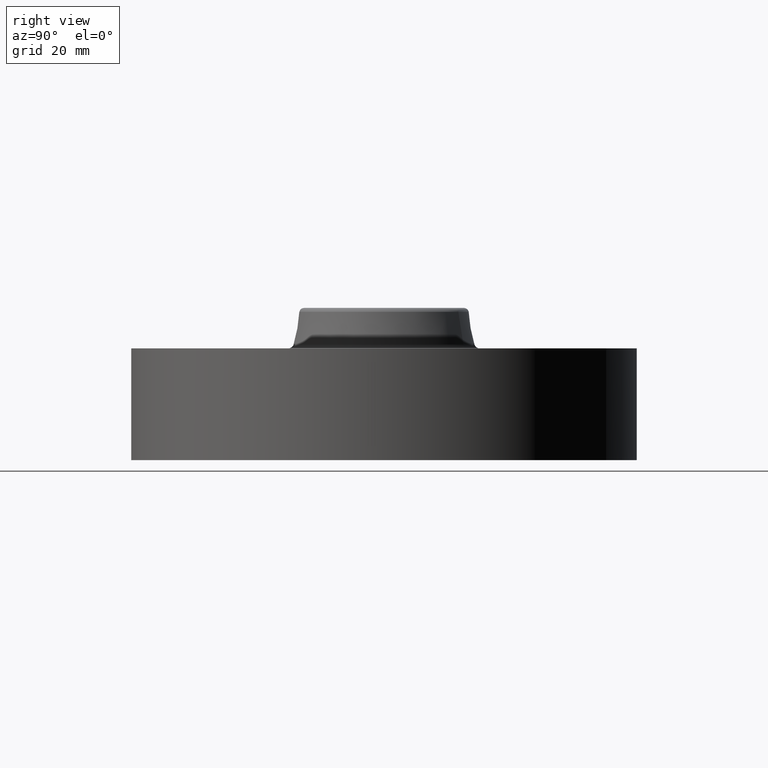
[diagram: clean part render]
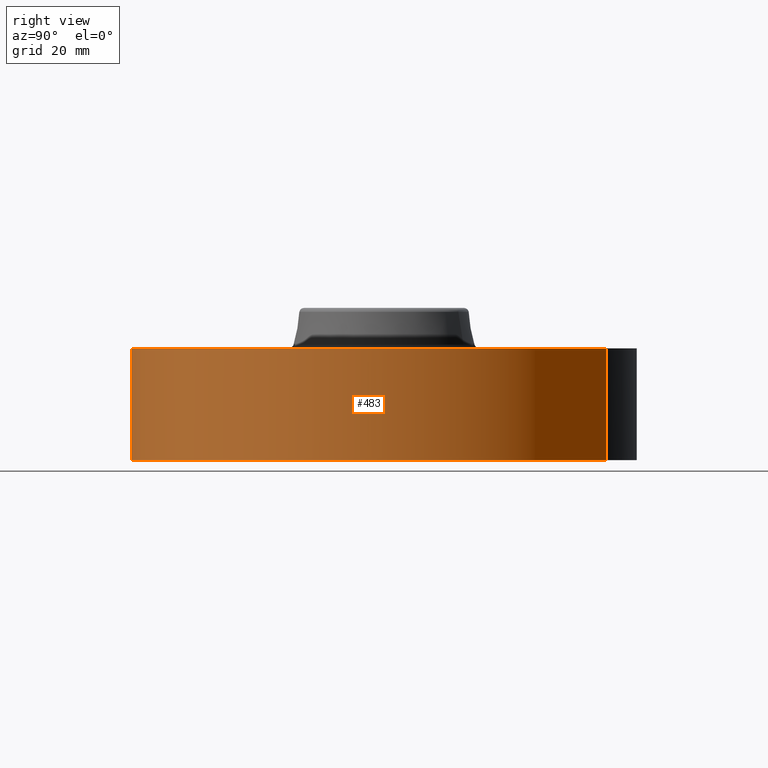
[diagram: same view with one face highlighted and labeled with its STEP entity id]
A machine part, right view. The second image highlights one B-rep face of the part: STEP entity #483.
In plain terms, the highlighted cylindrical surface (partial cylindrical patch) has radius 79.375 mm, axis along (0, 0, -1).
Its self-contained STEP definition (entity closure, byte-faithful):
#172=AXIS2_PLACEMENT_3D('Circle Axis2P3D',#170,#171,$) ;
#456=AXIS2_PLACEMENT_3D('Cylinder Axis2P3D',#453,#454,#455) ;
#467=AXIS2_PLACEMENT_3D('Circle Axis2P3D',#465,#466,$) ;
#170=CARTESIAN_POINT('Axis2P3D Location',(0.,0.,0.)) ;
#174=CARTESIAN_POINT('Vertex',(1.49820480814,2.74244550592,2.79741234551E-016)) ;
#176=CARTESIAN_POINT('Vertex',(-1.49820480814,-2.74244550592,2.79741234551E-016)) ;
#453=CARTESIAN_POINT('Axis2P3D Location',(0.,0.,0.940000000004)) ;
#458=CARTESIAN_POINT('Line Origine',(1.49820480814,2.74244550592,0.690000000003)) ;
#462=CARTESIAN_POINT('Vertex',(1.49820480814,2.74244550592,1.38000000001)) ;
#465=CARTESIAN_POINT('Axis2P3D Location',(0.,0.,1.38000000001)) ;
#469=CARTESIAN_POINT('Vertex',(-1.49820480814,-2.74244550592,1.38000000001)) ;
#472=CARTESIAN_POINT('Line Origine',(-1.49820480814,-2.74244550592,0.690000000003)) ;
#171=DIRECTION('Axis2P3D Direction',(0.,0.,-0.0393700787402)) ;
#454=DIRECTION('Axis2P3D Direction',(0.,0.,-0.0393700787402)) ;
#455=DIRECTION('Axis2P3D XDirection',(-0.0188750212049,-0.0345504945626,0.)) ;
#459=DIRECTION('Vector Direction',(0.,0.,-0.0393700787402)) ;
#466=DIRECTION('Axis2P3D Direction',(0.,0.,-0.0393700787402)) ;
#473=DIRECTION('Vector Direction',(0.,0.,-0.0393700787402)) ;
#460=VECTOR('Line Direction',#459,0.0393700787402) ;
#474=VECTOR('Line Direction',#473,0.0393700787402) ;
#478=ORIENTED_EDGE('',*,*,#178,.F.) ;
#479=ORIENTED_EDGE('',*,*,#464,.T.) ;
#480=ORIENTED_EDGE('',*,*,#471,.T.) ;
#481=ORIENTED_EDGE('',*,*,#476,.F.) ;
#483=ADVANCED_FACE('PartBody',(#482),#457,.T.) ;
#173=CIRCLE('generated circle',#172,3.12500000001) ;
#468=CIRCLE('generated circle',#467,3.12500000001) ;
#457=CYLINDRICAL_SURFACE('generated cylinder',#456,3.12500000001) ;
#178=EDGE_CURVE('',#175,#177,#173,.T.) ;
#464=EDGE_CURVE('',#175,#463,#461,.F.) ;
#471=EDGE_CURVE('',#463,#470,#468,.T.) ;
#476=EDGE_CURVE('',#177,#470,#475,.F.) ;
#477=EDGE_LOOP('',(#478,#479,#480,#481)) ;
#482=FACE_OUTER_BOUND('',#477,.T.) ;
#461=LINE('Line',#458,#460) ;
#475=LINE('Line',#472,#474) ;
#175=VERTEX_POINT('',#174) ;
#177=VERTEX_POINT('',#176) ;
#463=VERTEX_POINT('',#462) ;
#470=VERTEX_POINT('',#469) ;